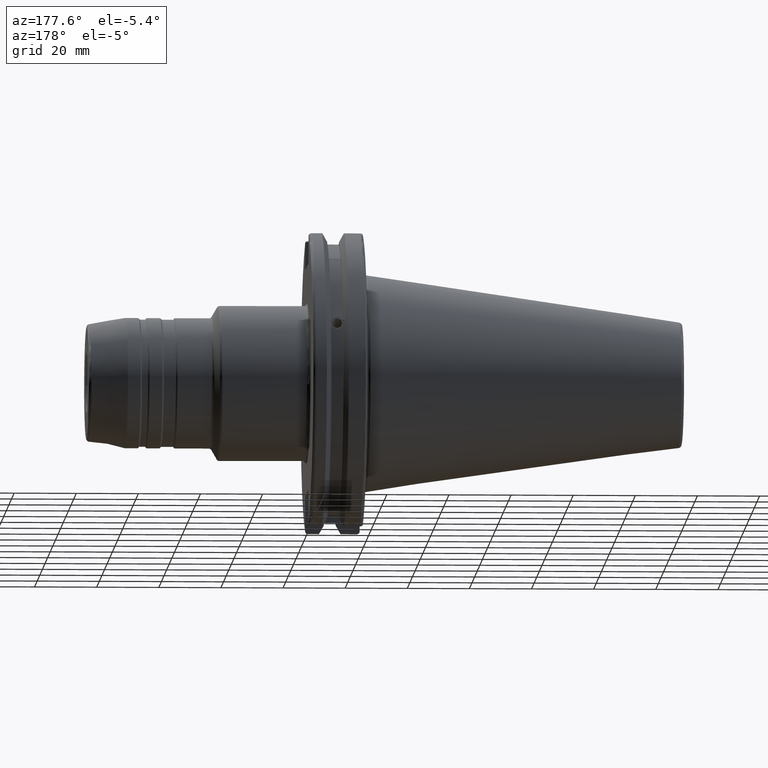
[diagram: clean part render]
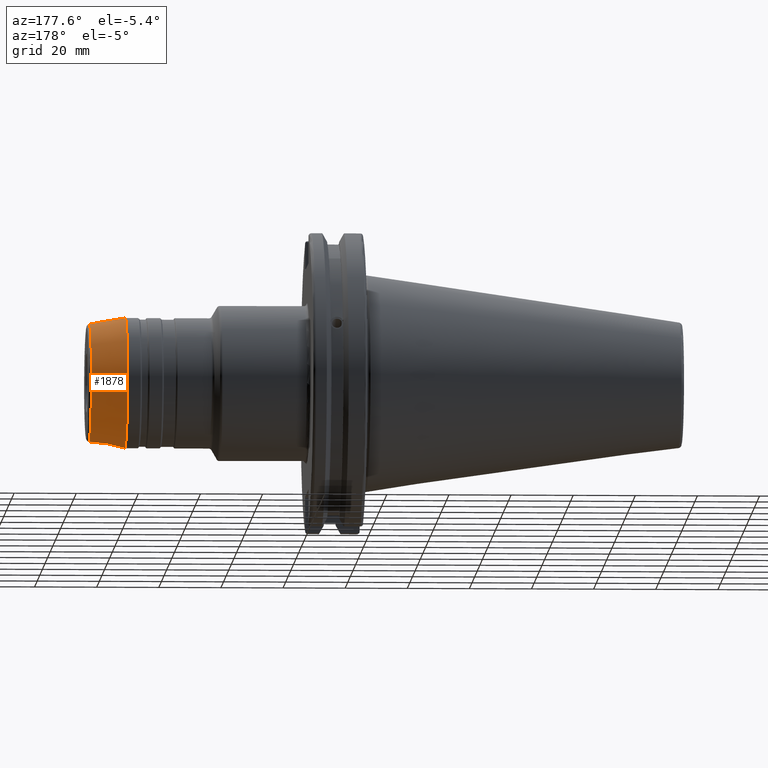
[diagram: same view with one face highlighted and labeled with its STEP entity id]
A machine part, auxiliary view. The second image highlights one B-rep face of the part: STEP entity #1878.
In plain terms, the highlighted conical surface has half-angle 10 deg.
Its self-contained STEP definition (entity closure, byte-faithful):
#136=CONICAL_SURFACE('',#2066,19.9,0.174532925199432);
#161=LINE('',#2957,#265);
#265=VECTOR('',#2403,19.9);
#412=FACE_OUTER_BOUND('',#520,.T.);
#520=EDGE_LOOP('',(#1379,#1380,#1381,#1382,#1383,#1384));
#678=CIRCLE('',#2063,20.9848077530122);
#679=CIRCLE('',#2064,20.9848077530122);
#681=CIRCLE('',#2067,18.9457081218349);
#682=CIRCLE('',#2068,18.9457081218349);
#799=VERTEX_POINT('',#2948);
#800=VERTEX_POINT('',#2949);
#801=VERTEX_POINT('',#2954);
#802=VERTEX_POINT('',#2955);
#1017=EDGE_CURVE('',#799,#800,#678,.T.);
#1018=EDGE_CURVE('',#800,#799,#679,.T.);
#1020=EDGE_CURVE('',#801,#802,#681,.T.);
#1021=EDGE_CURVE('',#801,#800,#161,.T.);
#1022=EDGE_CURVE('',#802,#801,#682,.T.);
#1379=ORIENTED_EDGE('',*,*,#1020,.F.);
#1380=ORIENTED_EDGE('',*,*,#1021,.T.);
#1381=ORIENTED_EDGE('',*,*,#1017,.F.);
#1382=ORIENTED_EDGE('',*,*,#1018,.F.);
#1383=ORIENTED_EDGE('',*,*,#1021,.F.);
#1384=ORIENTED_EDGE('',*,*,#1022,.F.);
#1878=ADVANCED_FACE('',(#412),#136,.T.);
#2063=AXIS2_PLACEMENT_3D('',#2950,#2393,#2394);
#2064=AXIS2_PLACEMENT_3D('',#2951,#2395,#2396);
#2066=AXIS2_PLACEMENT_3D('',#2953,#2399,#2400);
#2067=AXIS2_PLACEMENT_3D('',#2956,#2401,#2402);
#2068=AXIS2_PLACEMENT_3D('',#2958,#2404,#2405);
#2393=DIRECTION('center_axis',(-1.,0.,0.));
#2394=DIRECTION('ref_axis',(0.,-1.,3.06161699786838E-17));
#2395=DIRECTION('center_axis',(-1.,0.,0.));
#2396=DIRECTION('ref_axis',(0.,-1.,3.06161699786838E-17));
#2399=DIRECTION('center_axis',(-1.,0.,0.));
#2400=DIRECTION('ref_axis',(0.,1.,0.));
#2401=DIRECTION('center_axis',(1.,0.,0.));
#2402=DIRECTION('ref_axis',(0.,-1.,3.06161699786838E-17));
#2403=DIRECTION('',(-0.984807753012208,-0.17364817766693,-2.12657684957577E-17));
#2404=DIRECTION('center_axis',(1.,0.,0.));
#2405=DIRECTION('ref_axis',(0.,-1.,3.06161699786838E-17));
#2948=CARTESIAN_POINT('',(77.609339510982,-2.5698977645449E-15,20.9848077530122));
#2949=CARTESIAN_POINT('',(77.609339510982,-20.9848077530122,-2.5698977645449E-15));
#2950=CARTESIAN_POINT('Origin',(77.609339510982,0.,-3.21237220568112E-15));
#2951=CARTESIAN_POINT('Origin',(77.609339510982,0.,-3.21237220568112E-15));
#2953=CARTESIAN_POINT('Origin',(83.7615899984205,0.,0.));
#2954=CARTESIAN_POINT('',(89.1736481776669,-18.9457081218349,-2.32018008089852E-15));
#2955=CARTESIAN_POINT('',(89.1736481776669,-2.32018008089852E-15,18.9457081218349));
#2956=CARTESIAN_POINT('Origin',(89.1736481776669,0.,-2.90022510112314E-15));
#2957=CARTESIAN_POINT('',(83.7615899984205,-19.9,-2.43704713030323E-15));
#2958=CARTESIAN_POINT('Origin',(89.1736481776669,0.,-2.90022510112314E-15));